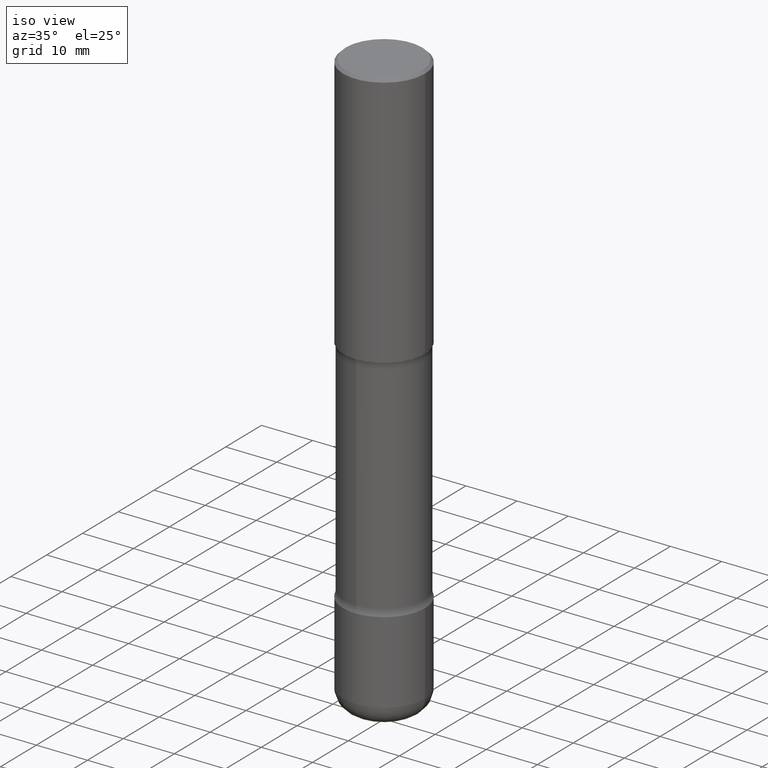
[diagram: clean part render]
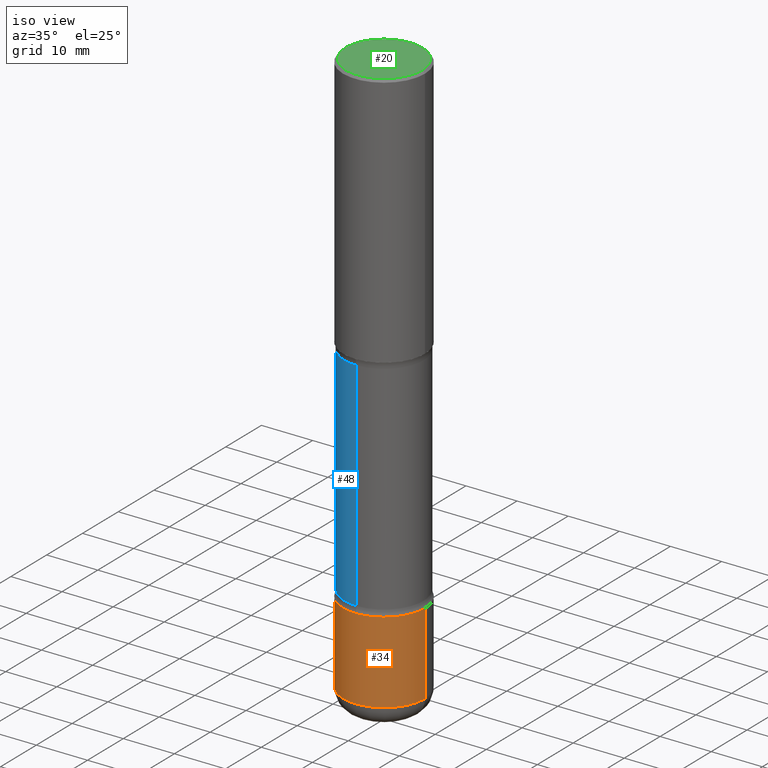
[diagram: same view with three faces highlighted in distinct colors, each labeled with its STEP entity id]
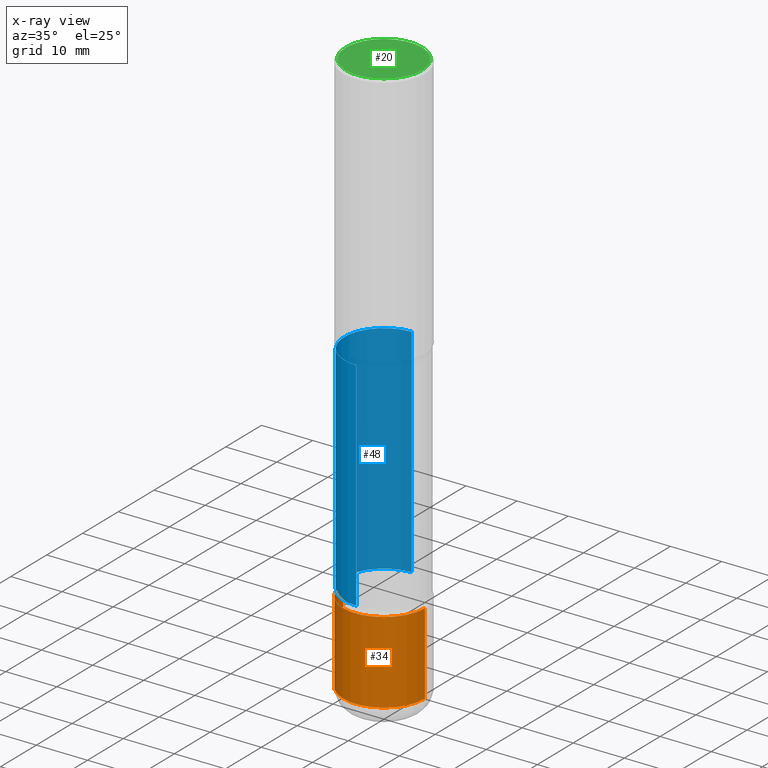
[diagram: x-ray of the same camera — body ghosted, the three highlighted faces saturated]
A machine part, iso view with three faces highlighted in distinct colors.
The next image is the same camera in x-ray (body ghosted, the three faces saturated) — at least one of them is partly hidden behind the body in this view.
Their STEP definitions:

[orange] entity #34 — the highlighted cylindrical surface (partial cylindrical patch) has radius 7.9997 mm, axis along (-0, 0, 1).
#8 = CARTESIAN_POINT ( 'NONE',  ( 0.000000000000000000, 0.000000000000000000, 0.000000000000000000 ) ) ;
#25 = ORIENTED_EDGE ( 'NONE', *, *, #518, .F. ) ;
#34 = ADVANCED_FACE ( 'NONE', ( #109 ), #63, .T. ) ;
#49 = AXIS2_PLACEMENT_3D ( 'NONE', #8, #164, #218 ) ;
#52 = DIRECTION ( 'NONE',  ( -2.445468806185136597E-29, 3.491481338843145583E-15, 1.000000000000000000 ) ) ;
#63 = CYLINDRICAL_SURFACE ( 'NONE', #49, 0.3149500000000002853 ) ;
#64 = CARTESIAN_POINT ( 'NONE',  ( 1.068694322990966674E-28, -1.525812259887843213E-14, -4.370100000000000762 ) ) ;
#77 = EDGE_LOOP ( 'NONE', ( #25, #427, #436, #514 ) ) ;
#95 = AXIS2_PLACEMENT_3D ( 'NONE', #277, #52, #314 ) ;
#109 = FACE_OUTER_BOUND ( 'NONE', #77, .T. ) ;
#118 = DIRECTION ( 'NONE',  ( -2.445468806185136877E-29, 3.491481338843145188E-15, 1.000000000000000000 ) ) ;
#132 = VERTEX_POINT ( 'NONE', #153 ) ;
#148 = VECTOR ( 'NONE', #118, 39.37007874015748143 ) ;
#153 = CARTESIAN_POINT ( 'NONE',  ( -0.3149500000000002298, -1.192062620493334568E-14, -3.740200000000000191 ) ) ;
#164 = DIRECTION ( 'NONE',  ( -2.445468806185136597E-29, 3.491481338843145583E-15, 1.000000000000000000 ) ) ;
#165 = LINE ( 'NONE', #242, #148 ) ;
#185 = EDGE_CURVE ( 'NONE', #132, #293, #437, .T. ) ;
#195 = AXIS2_PLACEMENT_3D ( 'NONE', #64, #500, #290 ) ;
#207 = CARTESIAN_POINT ( 'NONE',  ( 0.3149500000000002298, -1.525812259887842581E-14, -3.740200000000000191 ) ) ;
#218 = DIRECTION ( 'NONE',  ( 1.000000000000000000, -6.982962677686267499E-15, 4.876176775795936353E-29 ) ) ;
#222 = LINE ( 'NONE', #440, #410 ) ;
#230 = CIRCLE ( 'NONE', #195, 0.3149500000000002853 ) ;
#242 = CARTESIAN_POINT ( 'NONE',  ( 0.3149500000000002853, -2.199284095337291843E-15, 1.535751875536931531E-29 ) ) ;
#256 = VERTEX_POINT ( 'NONE', #443 ) ;
#263 = DIRECTION ( 'NONE',  ( -2.445468806185136877E-29, 3.491481338843145188E-15, 1.000000000000000000 ) ) ;
#277 = CARTESIAN_POINT ( 'NONE',  ( 9.146542428893648262E-29, -1.305883850354113437E-14, -3.740200000000000191 ) ) ;
#290 = DIRECTION ( 'NONE',  ( 1.000000000000000000, -6.982962677686263555E-15, 0.000000000000000000 ) ) ;
#293 = VERTEX_POINT ( 'NONE', #207 ) ;
#302 = CARTESIAN_POINT ( 'NONE',  ( 0.3149500000000001743, -1.745740669421572357E-14, -4.370100000000000762 ) ) ;
#307 = EDGE_CURVE ( 'NONE', #549, #293, #165, .T. ) ;
#314 = DIRECTION ( 'NONE',  ( 1.000000000000000000, -6.982962677686264344E-15, 0.000000000000000000 ) ) ;
#346 = EDGE_CURVE ( 'NONE', #256, #549, #230, .T. ) ;
#410 = VECTOR ( 'NONE', #263, 39.37007874015748143 ) ;
#427 = ORIENTED_EDGE ( 'NONE', *, *, #346, .T. ) ;
#436 = ORIENTED_EDGE ( 'NONE', *, *, #307, .T. ) ;
#437 = CIRCLE ( 'NONE', #95, 0.3149500000000002298 ) ;
#440 = CARTESIAN_POINT ( 'NONE',  ( -0.3149500000000002853, 2.237854346276437562E-15, -1.549218606675783797E-29 ) ) ;
#443 = CARTESIAN_POINT ( 'NONE',  ( -0.3149500000000001743, -1.302026825260199614E-14, -4.370100000000000762 ) ) ;
#500 = DIRECTION ( 'NONE',  ( -2.445468806185136597E-29, 3.491481338843145583E-15, 1.000000000000000000 ) ) ;
#514 = ORIENTED_EDGE ( 'NONE', *, *, #185, .F. ) ;
#518 = EDGE_CURVE ( 'NONE', #256, #132, #222, .T. ) ;
#549 = VERTEX_POINT ( 'NONE', #302 ) ;

[blue] entity #48 — the highlighted cylindrical surface (partial cylindrical patch) has radius 7.747 mm, axis along (0, -0, -1).
#6 = VECTOR ( 'NONE', #373, 39.37007874015748143 ) ;
#13 = VERTEX_POINT ( 'NONE', #327 ) ;
#48 = ADVANCED_FACE ( 'NONE', ( #339 ), #126, .T. ) ;
#78 = CARTESIAN_POINT ( 'NONE',  ( 4.820755151858623476E-29, -7.204961388123744804E-15, -2.017372256956273979 ) ) ;
#96 = CIRCLE ( 'NONE', #536, 0.3049999999999999378 ) ;
#108 = CIRCLE ( 'NONE', #429, 0.3049999999999999933 ) ;
#113 = ORIENTED_EDGE ( 'NONE', *, *, #556, .T. ) ;
#123 = DIRECTION ( 'NONE',  ( 6.982962677686266711E-15, 1.000000000000000000, -3.582751467100674095E-15 ) ) ;
#126 = CYLINDRICAL_SURFACE ( 'NONE', #450, 0.3049999999999999378 ) ;
#141 = EDGE_CURVE ( 'NONE', #417, #382, #282, .T. ) ;
#174 = EDGE_LOOP ( 'NONE', ( #426, #113, #464, #217 ) ) ;
#204 = CARTESIAN_POINT ( 'NONE',  ( 2.129803616694359388E-15, 0.3049999999999927769, -2.017372256956274867 ) ) ;
#209 = VERTEX_POINT ( 'NONE', #407 ) ;
#217 = ORIENTED_EDGE ( 'NONE', *, *, #424, .F. ) ;
#234 = EDGE_CURVE ( 'NONE', #13, #209, #237, .T. ) ;
#237 = LINE ( 'NONE', #371, #259 ) ;
#259 = VECTOR ( 'NONE', #529, 39.37007874015748143 ) ;
#282 = LINE ( 'NONE', #449, #6 ) ;
#298 = CARTESIAN_POINT ( 'NONE',  ( 1.112359725384078225E-28, -1.573429045124212958E-14, -4.527600000000000513 ) ) ;
#327 = CARTESIAN_POINT ( 'NONE',  ( -2.126582866859183647E-15, -0.3050000000000072098, -2.017372256956272647 ) ) ;
#336 = CARTESIAN_POINT ( 'NONE',  ( 9.023830806565153848E-29, -1.289277884509281722E-14, -3.691327743043726795 ) ) ;
#339 = FACE_OUTER_BOUND ( 'NONE', #174, .T. ) ;
#371 = CARTESIAN_POINT ( 'NONE',  ( -2.092451889320205392E-15, -0.3050000000000157030, -4.527599999999998737 ) ) ;
#373 = DIRECTION ( 'NONE',  ( 2.510864649412157600E-29, -3.397830769241806549E-15, -1.000000000000000000 ) ) ;
#382 = VERTEX_POINT ( 'NONE', #421 ) ;
#387 = DIRECTION ( 'NONE',  ( 2.510864649412157880E-29, -3.397830769241806549E-15, -1.000000000000000000 ) ) ;
#390 = DIRECTION ( 'NONE',  ( 2.510864649412157880E-29, -3.397830769241806549E-15, -1.000000000000000000 ) ) ;
#407 = CARTESIAN_POINT ( 'NONE',  ( -2.126582866859139470E-15, -0.3050000000000128719, -3.691327743043725906 ) ) ;
#417 = VERTEX_POINT ( 'NONE', #204 ) ;
#421 = CARTESIAN_POINT ( 'NONE',  ( 2.129803616694401198E-15, 0.3049999999999870592, -3.691327743043728127 ) ) ;
#424 = EDGE_CURVE ( 'NONE', #209, #382, #96, .T. ) ;
#426 = ORIENTED_EDGE ( 'NONE', *, *, #234, .F. ) ;
#429 = AXIS2_PLACEMENT_3D ( 'NONE', #78, #390, #547 ) ;
#449 = CARTESIAN_POINT ( 'NONE',  ( 2.129803616694422103E-15, 0.3049999999999842282, -4.527600000000001401 ) ) ;
#450 = AXIS2_PLACEMENT_3D ( 'NONE', #298, #387, #123 ) ;
#458 = DIRECTION ( 'NONE',  ( 2.510864649412157880E-29, -3.397830769241806549E-15, -1.000000000000000000 ) ) ;
#464 = ORIENTED_EDGE ( 'NONE', *, *, #141, .T. ) ;
#529 = DIRECTION ( 'NONE',  ( 2.510864649412157600E-29, -3.397830769241806549E-15, -1.000000000000000000 ) ) ;
#536 = AXIS2_PLACEMENT_3D ( 'NONE', #336, #458, #542 ) ;
#542 = DIRECTION ( 'NONE',  ( 6.982962677686266711E-15, 1.000000000000000000, -3.582751467100674095E-15 ) ) ;
#547 = DIRECTION ( 'NONE',  ( 6.982962677686266711E-15, 1.000000000000000000, -3.582751467100673306E-15 ) ) ;
#556 = EDGE_CURVE ( 'NONE', #13, #417, #108, .T. ) ;

[green] entity #20 — the highlighted planar face has unit normal (0, -0, -1).
#9 = VERTEX_POINT ( 'NONE', #154 ) ;
#20 = ADVANCED_FACE ( 'NONE', ( #243 ), #156, .F. ) ;
#27 = DIRECTION ( 'NONE',  ( 1.000000000000000000, -6.982962677686267499E-15, 4.876053491004736589E-29 ) ) ;
#57 = CARTESIAN_POINT ( 'NONE',  ( -3.131554243005663153E-46, 4.471029511141347348E-32, 1.280553747030124924E-17 ) ) ;
#66 = DIRECTION ( 'NONE',  ( 1.000000000000000000, -6.982962677686267499E-15, 4.876053491004736589E-29 ) ) ;
#68 = CIRCLE ( 'NONE', #394, 0.2949499999999998789 ) ;
#79 = EDGE_LOOP ( 'NONE', ( #343, #379 ) ) ;
#154 = CARTESIAN_POINT ( 'NONE',  ( -0.2949499999999998789, 2.094539655171994924E-15, 1.280553747028672311E-17 ) ) ;
#156 = PLANE ( 'NONE',  #474 ) ;
#157 = CARTESIAN_POINT ( 'NONE',  ( -3.131554243005663153E-46, 4.471029511141347348E-32, 1.280553747030124924E-17 ) ) ;
#196 = CARTESIAN_POINT ( 'NONE',  ( 2.059624841783563274E-15, 0.2949499999999998789, -1.023409652156634744E-15 ) ) ;
#243 = FACE_OUTER_BOUND ( 'NONE', #79, .T. ) ;
#287 = EDGE_CURVE ( 'NONE', #9, #415, #68, .T. ) ;
#295 = DIRECTION ( 'NONE',  ( -2.445468806185136597E-29, 3.491481338843145583E-15, 1.000000000000000000 ) ) ;
#318 = DIRECTION ( 'NONE',  ( -2.445468806185136597E-29, 3.491481338843145583E-15, 1.000000000000000000 ) ) ;
#332 = CARTESIAN_POINT ( 'NONE',  ( 0.2949499999999998789, -2.127023677808859286E-15, 1.280553747031588939E-17 ) ) ;
#335 = EDGE_CURVE ( 'NONE', #415, #9, #504, .T. ) ;
#342 = AXIS2_PLACEMENT_3D ( 'NONE', #157, #295, #66 ) ;
#343 = ORIENTED_EDGE ( 'NONE', *, *, #287, .T. ) ;
#379 = ORIENTED_EDGE ( 'NONE', *, *, #335, .T. ) ;
#394 = AXIS2_PLACEMENT_3D ( 'NONE', #57, #318, #27 ) ;
#415 = VERTEX_POINT ( 'NONE', #332 ) ;
#454 = DIRECTION ( 'NONE',  ( 2.438088387897960049E-29, -3.491481338843145188E-15, -1.000000000000000000 ) ) ;
#474 = AXIS2_PLACEMENT_3D ( 'NONE', #196, #454, #491 ) ;
#491 = DIRECTION ( 'NONE',  ( -1.000000000000000000, 6.982962677686265922E-15, -4.876176775795935793E-29 ) ) ;
#504 = CIRCLE ( 'NONE', #342, 0.2949499999999998789 ) ;